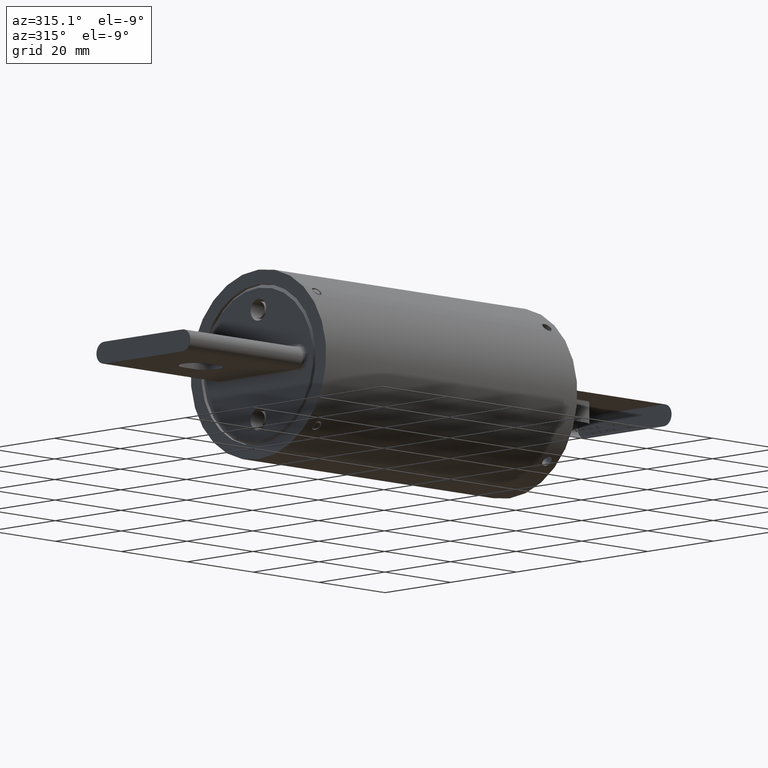
[diagram: clean part render]
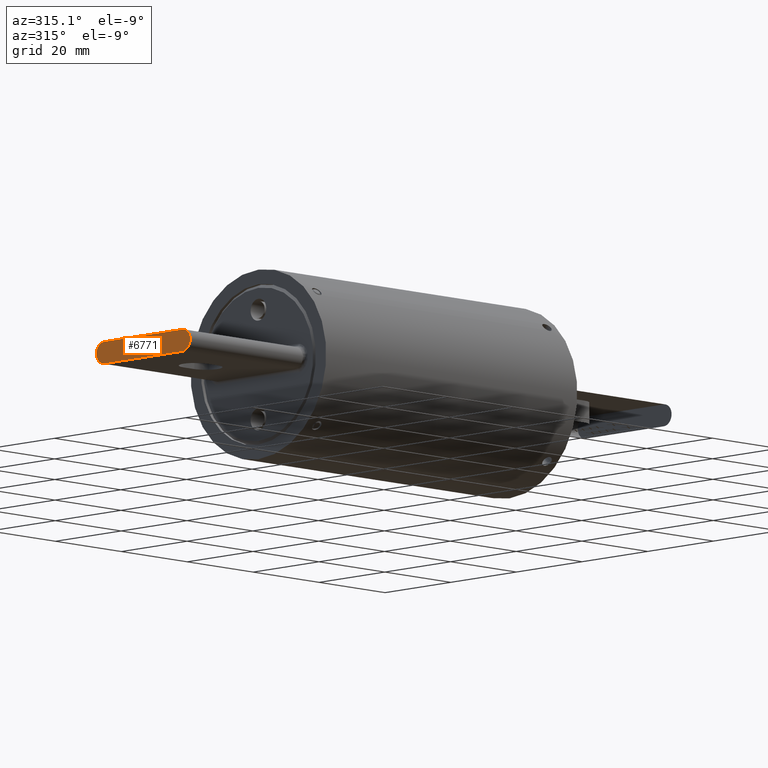
[diagram: same view with one face highlighted and labeled with its STEP entity id]
A machine part, auxiliary view. The second image highlights one B-rep face of the part: STEP entity #6771.
In plain terms, the highlighted planar face has unit normal (-1, 0, 0).
Its self-contained STEP definition (entity closure, byte-faithful):
#592 = CARTESIAN_POINT ( 'NONE',  ( -2.875000000000002700, 0.4687500000000011700, 0.09375000000000041600 ) ) ;
#689 = DIRECTION ( 'NONE',  ( 0.0000000000000000000, 0.0000000000000000000, -1.000000000000000000 ) ) ;
#752 = DIRECTION ( 'NONE',  ( 1.000000000000000000, 7.377009400124987100E-018, -1.390552025336125600E-016 ) ) ;
#756 = EDGE_CURVE ( 'NONE', #7905, #2748, #9289, .T. ) ;
#1320 = ORIENTED_EDGE ( 'NONE', *, *, #2109, .T. ) ;
#1724 = ORIENTED_EDGE ( 'NONE', *, *, #5317, .T. ) ;
#1788 = EDGE_CURVE ( 'NONE', #7556, #6781, #9171, .T. ) ;
#1842 = AXIS2_PLACEMENT_3D ( 'NONE', #4487, #4471, #4462 ) ;
#2041 = CARTESIAN_POINT ( 'NONE',  ( -2.875000000000002700, 0.4687500000000011700, -0.09374999999999957000 ) ) ;
#2109 = EDGE_CURVE ( 'NONE', #7556, #2748, #9547, .T. ) ;
#2278 = CARTESIAN_POINT ( 'NONE',  ( -2.875000000000002700, -0.4687500000000013300, 2.558877667990103700E-016 ) ) ;
#2522 = DIRECTION ( 'NONE',  ( 0.0000000000000000000, 0.0000000000000000000, -1.000000000000000000 ) ) ;
#2748 = VERTEX_POINT ( 'NONE', #592 ) ;
#2903 = CARTESIAN_POINT ( 'NONE',  ( -2.875000000000002700, -0.4687500000000013300, 0.09375000000000023600 ) ) ;
#3452 = PLANE ( 'NONE',  #1842 ) ;
#3678 = EDGE_LOOP ( 'NONE', ( #6375, #1320, #4644, #1724 ) ) ;
#4093 = CARTESIAN_POINT ( 'NONE',  ( -2.875000000000002700, -0.4687500000000013300, -0.09374999999999979200 ) ) ;
#4462 = DIRECTION ( 'NONE',  ( 1.390552025336125100E-016, 0.0000000000000000000, 1.000000000000000000 ) ) ;
#4471 = DIRECTION ( 'NONE',  ( -1.000000000000000000, 1.410017152634097700E-017, 1.390552025336125100E-016 ) ) ;
#4487 = CARTESIAN_POINT ( 'NONE',  ( -2.875000000000002700, 0.4687500000000011700, 3.670390419149393600E-016 ) ) ;
#4644 = ORIENTED_EDGE ( 'NONE', *, *, #756, .F. ) ;
#4684 = DIRECTION ( 'NONE',  ( 0.0000000000000000000, -1.000000000000000000, -2.281093074709656800E-016 ) ) ;
#4988 = VECTOR ( 'NONE', #9220, 39.37007874015748100 ) ;
#5317 = EDGE_CURVE ( 'NONE', #7905, #6781, #5394, .T. ) ;
#5394 = LINE ( 'NONE', #6042, #9455 ) ;
#6042 = CARTESIAN_POINT ( 'NONE',  ( -2.875000000000002700, 0.4687500000000011700, -0.09374999999999957000 ) ) ;
#6375 = ORIENTED_EDGE ( 'NONE', *, *, #1788, .F. ) ;
#6771 = ADVANCED_FACE ( 'NONE', ( #7478 ), #3452, .T. ) ;
#6781 = VERTEX_POINT ( 'NONE', #4093 ) ;
#7106 = DIRECTION ( 'NONE',  ( 1.000000000000000000, 7.377009400124987100E-018, -1.390552025336125600E-016 ) ) ;
#7478 = FACE_OUTER_BOUND ( 'NONE', #3678, .T. ) ;
#7556 = VERTEX_POINT ( 'NONE', #2903 ) ;
#7669 = AXIS2_PLACEMENT_3D ( 'NONE', #7993, #752, #689 ) ;
#7905 = VERTEX_POINT ( 'NONE', #2041 ) ;
#7993 = CARTESIAN_POINT ( 'NONE',  ( -2.875000000000002700, 0.4687500000000011700, 3.670390419149393600E-016 ) ) ;
#8181 = AXIS2_PLACEMENT_3D ( 'NONE', #2278, #7106, #2522 ) ;
#9171 = CIRCLE ( 'NONE', #8181, 0.09375000000000019400 ) ;
#9220 = DIRECTION ( 'NONE',  ( 0.0000000000000000000, 1.000000000000000000, 1.916846675554422200E-016 ) ) ;
#9289 = CIRCLE ( 'NONE', #7669, 0.09375000000000019400 ) ;
#9455 = VECTOR ( 'NONE', #4684, 39.37007874015748100 ) ;
#9476 = CARTESIAN_POINT ( 'NONE',  ( -2.875000000000002700, 0.4687500000000011700, 0.09375000000000041600 ) ) ;
#9547 = LINE ( 'NONE', #9476, #4988 ) ;